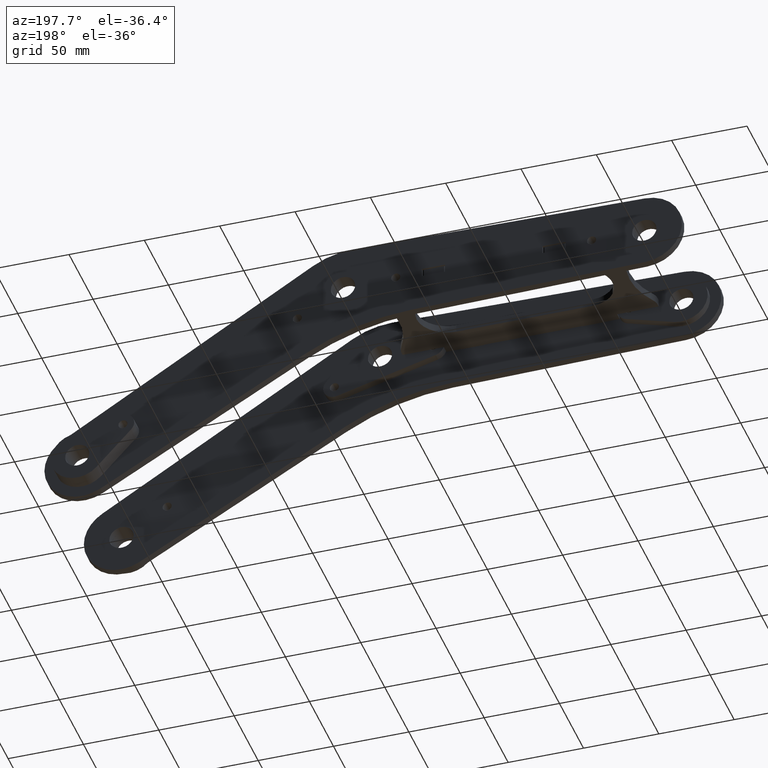
[diagram: clean part render]
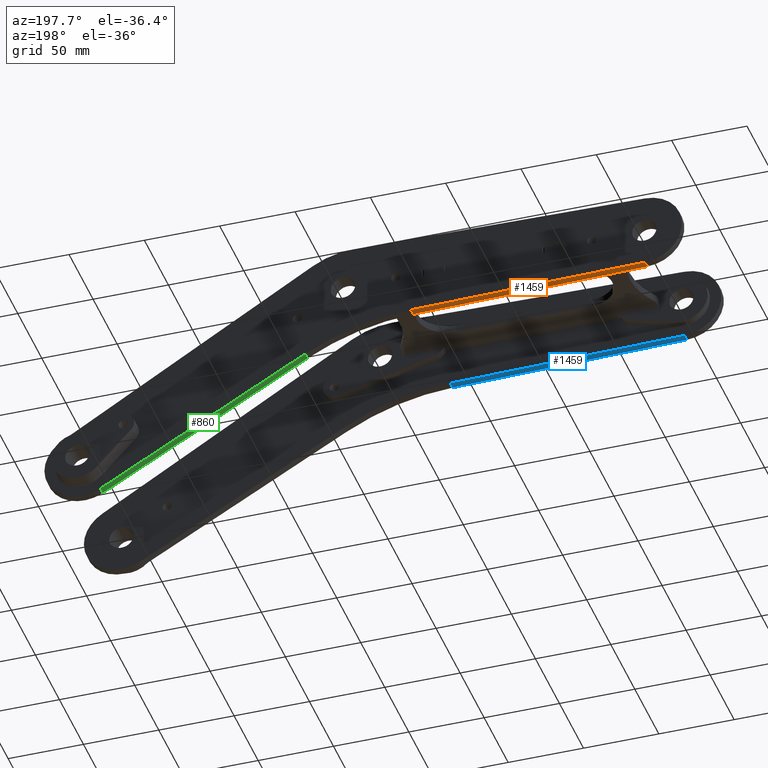
[diagram: same view with three faces highlighted in distinct colors, each labeled with its STEP entity id]
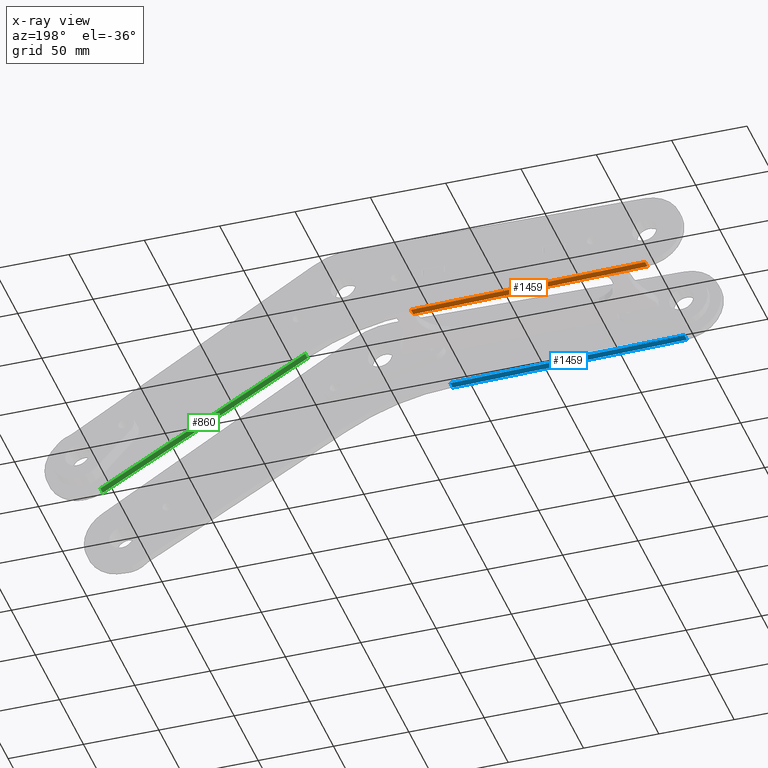
[diagram: x-ray of the same camera — body ghosted, the three highlighted faces saturated]
A machine part, auxiliary view with three faces highlighted in distinct colors.
The next image is the same camera in x-ray (body ghosted, the three faces saturated) — at least one of them is partly hidden behind the body in this view.
Their STEP definitions:

[orange] entity #1459 — the highlighted planar face has unit normal (-0.0175, -0, -0.9998).
#211 = VERTEX_POINT ( 'NONE', #2840 ) ;
#598 = FACE_OUTER_BOUND ( 'NONE', #752, .T. ) ;
#670 = CARTESIAN_POINT ( 'NONE',  ( -200.4363101609320950, -24.99619237890977530, -5.000000000000000000 ) ) ;
#701 = EDGE_CURVE ( 'NONE', #1866, #1009, #1950, .T. ) ;
#752 = EDGE_LOOP ( 'NONE', ( #1879, #4184, #825, #4088 ) ) ;
#825 = ORIENTED_EDGE ( 'NONE', *, *, #4283, .T. ) ;
#865 = CARTESIAN_POINT ( 'NONE',  ( -200.4363101609320950, -24.99619237890977530, -5.000000000000000000 ) ) ;
#962 = CARTESIAN_POINT ( 'NONE',  ( -200.4363101609320950, -24.99619237890977530, 0.000000000000000000 ) ) ;
#965 = LINE ( 'NONE', #3302, #3862 ) ;
#1009 = VERTEX_POINT ( 'NONE', #962 ) ;
#1023 = LINE ( 'NONE', #3719, #2730 ) ;
#1263 = DIRECTION ( 'NONE',  ( -0.01745240643728373370, -0.9998476951563912696, 0.000000000000000000 ) ) ;
#1391 = LINE ( 'NONE', #670, #2059 ) ;
#1394 = CARTESIAN_POINT ( 'NONE',  ( -200.4363101609320950, -24.99619237890977530, -5.000000000000000000 ) ) ;
#1459 = ADVANCED_FACE ( 'NONE', ( #598 ), #4320, .T. ) ;
#1626 = VERTEX_POINT ( 'NONE', #3401 ) ;
#1634 = DIRECTION ( 'NONE',  ( 0.9998476951563911586, -0.01745240643728373023, 0.000000000000000000 ) ) ;
#1866 = VERTEX_POINT ( 'NONE', #1394 ) ;
#1879 = ORIENTED_EDGE ( 'NONE', *, *, #3367, .F. ) ;
#1950 = LINE ( 'NONE', #2420, #4351 ) ;
#2059 = VECTOR ( 'NONE', #3717, 1000.000000000000114 ) ;
#2398 = EDGE_CURVE ( 'NONE', #1626, #211, #1023, .T. ) ;
#2420 = CARTESIAN_POINT ( 'NONE',  ( -200.4363101609320950, -24.99619237890977530, -5.000000000000000000 ) ) ;
#2505 = AXIS2_PLACEMENT_3D ( 'NONE', #865, #1263, #2978 ) ;
#2730 = VECTOR ( 'NONE', #4026, 1000.000000000000000 ) ;
#2840 = CARTESIAN_POINT ( 'NONE',  ( -44.99312471194955521, -27.70946327357076555, 0.000000000000000000 ) ) ;
#2978 = DIRECTION ( 'NONE',  ( 0.9998476951563911586, -0.01745240643728373023, 0.000000000000000000 ) ) ;
#3302 = CARTESIAN_POINT ( 'NONE',  ( -200.4363101609320950, -24.99619237890977530, 0.000000000000000000 ) ) ;
#3367 = EDGE_CURVE ( 'NONE', #1009, #211, #965, .T. ) ;
#3401 = CARTESIAN_POINT ( 'NONE',  ( -44.99312471194955521, -27.70946327357076555, -5.000000000000000000 ) ) ;
#3439 = DIRECTION ( 'NONE',  ( 0.000000000000000000, 0.000000000000000000, 1.000000000000000000 ) ) ;
#3717 = DIRECTION ( 'NONE',  ( 0.9998476951563911586, -0.01745240643728373023, 0.000000000000000000 ) ) ;
#3719 = CARTESIAN_POINT ( 'NONE',  ( -44.99312471194955521, -27.70946327357076555, -5.000000000000000000 ) ) ;
#3862 = VECTOR ( 'NONE', #1634, 1000.000000000000114 ) ;
#4026 = DIRECTION ( 'NONE',  ( 0.000000000000000000, 0.000000000000000000, 1.000000000000000000 ) ) ;
#4088 = ORIENTED_EDGE ( 'NONE', *, *, #2398, .T. ) ;
#4184 = ORIENTED_EDGE ( 'NONE', *, *, #701, .F. ) ;
#4283 = EDGE_CURVE ( 'NONE', #1866, #1626, #1391, .T. ) ;
#4320 = PLANE ( 'NONE',  #2505 ) ;
#4351 = VECTOR ( 'NONE', #3439, 1000.000000000000000 ) ;

[blue] entity #1459 — the highlighted planar face has unit normal (-0.0175, 0, -0.9998).
#211 = VERTEX_POINT ( 'NONE', #2840 ) ;
#598 = FACE_OUTER_BOUND ( 'NONE', #752, .T. ) ;
#670 = CARTESIAN_POINT ( 'NONE',  ( -200.4363101609320950, -24.99619237890977530, -5.000000000000000000 ) ) ;
#701 = EDGE_CURVE ( 'NONE', #1866, #1009, #1950, .T. ) ;
#752 = EDGE_LOOP ( 'NONE', ( #1879, #4184, #825, #4088 ) ) ;
#825 = ORIENTED_EDGE ( 'NONE', *, *, #4283, .T. ) ;
#865 = CARTESIAN_POINT ( 'NONE',  ( -200.4363101609320950, -24.99619237890977530, -5.000000000000000000 ) ) ;
#962 = CARTESIAN_POINT ( 'NONE',  ( -200.4363101609320950, -24.99619237890977530, 0.000000000000000000 ) ) ;
#965 = LINE ( 'NONE', #3302, #3862 ) ;
#1009 = VERTEX_POINT ( 'NONE', #962 ) ;
#1023 = LINE ( 'NONE', #3719, #2730 ) ;
#1263 = DIRECTION ( 'NONE',  ( -0.01745240643728373370, -0.9998476951563912696, 0.000000000000000000 ) ) ;
#1391 = LINE ( 'NONE', #670, #2059 ) ;
#1394 = CARTESIAN_POINT ( 'NONE',  ( -200.4363101609320950, -24.99619237890977530, -5.000000000000000000 ) ) ;
#1459 = ADVANCED_FACE ( 'NONE', ( #598 ), #4320, .T. ) ;
#1626 = VERTEX_POINT ( 'NONE', #3401 ) ;
#1634 = DIRECTION ( 'NONE',  ( 0.9998476951563911586, -0.01745240643728373023, 0.000000000000000000 ) ) ;
#1866 = VERTEX_POINT ( 'NONE', #1394 ) ;
#1879 = ORIENTED_EDGE ( 'NONE', *, *, #3367, .F. ) ;
#1950 = LINE ( 'NONE', #2420, #4351 ) ;
#2059 = VECTOR ( 'NONE', #3717, 1000.000000000000114 ) ;
#2398 = EDGE_CURVE ( 'NONE', #1626, #211, #1023, .T. ) ;
#2420 = CARTESIAN_POINT ( 'NONE',  ( -200.4363101609320950, -24.99619237890977530, -5.000000000000000000 ) ) ;
#2505 = AXIS2_PLACEMENT_3D ( 'NONE', #865, #1263, #2978 ) ;
#2730 = VECTOR ( 'NONE', #4026, 1000.000000000000000 ) ;
#2840 = CARTESIAN_POINT ( 'NONE',  ( -44.99312471194955521, -27.70946327357076555, 0.000000000000000000 ) ) ;
#2978 = DIRECTION ( 'NONE',  ( 0.9998476951563911586, -0.01745240643728373023, 0.000000000000000000 ) ) ;
#3302 = CARTESIAN_POINT ( 'NONE',  ( -200.4363101609320950, -24.99619237890977530, 0.000000000000000000 ) ) ;
#3367 = EDGE_CURVE ( 'NONE', #1009, #211, #965, .T. ) ;
#3401 = CARTESIAN_POINT ( 'NONE',  ( -44.99312471194955521, -27.70946327357076555, -5.000000000000000000 ) ) ;
#3439 = DIRECTION ( 'NONE',  ( 0.000000000000000000, 0.000000000000000000, 1.000000000000000000 ) ) ;
#3717 = DIRECTION ( 'NONE',  ( 0.9998476951563911586, -0.01745240643728373023, 0.000000000000000000 ) ) ;
#3719 = CARTESIAN_POINT ( 'NONE',  ( -44.99312471194955521, -27.70946327357076555, -5.000000000000000000 ) ) ;
#3862 = VECTOR ( 'NONE', #1634, 1000.000000000000114 ) ;
#4026 = DIRECTION ( 'NONE',  ( 0.000000000000000000, 0.000000000000000000, 1.000000000000000000 ) ) ;
#4088 = ORIENTED_EDGE ( 'NONE', *, *, #2398, .T. ) ;
#4184 = ORIENTED_EDGE ( 'NONE', *, *, #701, .F. ) ;
#4283 = EDGE_CURVE ( 'NONE', #1866, #1626, #1391, .T. ) ;
#4320 = PLANE ( 'NONE',  #2505 ) ;
#4351 = VECTOR ( 'NONE', #3439, 1000.000000000000000 ) ;

[green] entity #860 — the highlighted planar face has unit normal (-0.4848, -0, -0.8746).
#9 = EDGE_CURVE ( 'NONE', #1072, #1962, #3420, .T. ) ;
#79 = PLANE ( 'NONE',  #1217 ) ;
#148 = CARTESIAN_POINT ( 'NONE',  ( 25.11045735940951218, -46.49366147612066413, -5.000000000000000000 ) ) ;
#162 = VECTOR ( 'NONE', #526, 1000.000000000000000 ) ;
#451 = CARTESIAN_POINT ( 'NONE',  ( 161.0848402507290302, -121.8654926784849835, -5.000000000000000000 ) ) ;
#526 = DIRECTION ( 'NONE',  ( 0.000000000000000000, 0.000000000000000000, 1.000000000000000000 ) ) ;
#831 = DIRECTION ( 'NONE',  ( -0.4848096202463438864, -0.8746197071393920774, 0.000000000000000000 ) ) ;
#860 = ADVANCED_FACE ( 'NONE', ( #1830 ), #79, .T. ) ;
#931 = LINE ( 'NONE', #1956, #1932 ) ;
#1072 = VERTEX_POINT ( 'NONE', #3962 ) ;
#1217 = AXIS2_PLACEMENT_3D ( 'NONE', #451, #831, #3501 ) ;
#1407 = DIRECTION ( 'NONE',  ( 0.8746197071393919664, -0.4848096202463438309, -0.000000000000000000 ) ) ;
#1474 = EDGE_CURVE ( 'NONE', #1962, #3462, #931, .T. ) ;
#1749 = ORIENTED_EDGE ( 'NONE', *, *, #1920, .F. ) ;
#1768 = VECTOR ( 'NONE', #2430, 1000.000000000000227 ) ;
#1830 = FACE_OUTER_BOUND ( 'NONE', #2680, .T. ) ;
#1847 = ORIENTED_EDGE ( 'NONE', *, *, #3785, .F. ) ;
#1909 = DIRECTION ( 'NONE',  ( 0.000000000000000000, 0.000000000000000000, 1.000000000000000000 ) ) ;
#1920 = EDGE_CURVE ( 'NONE', #1072, #2939, #4315, .T. ) ;
#1932 = VECTOR ( 'NONE', #1909, 1000.000000000000000 ) ;
#1956 = CARTESIAN_POINT ( 'NONE',  ( 161.0848402507290302, -121.8654926784849835, -5.000000000000000000 ) ) ;
#1962 = VERTEX_POINT ( 'NONE', #2555 ) ;
#2218 = CARTESIAN_POINT ( 'NONE',  ( 25.11045735940951218, -46.49366147612066413, 0.000000000000000000 ) ) ;
#2239 = VECTOR ( 'NONE', #1407, 1000.000000000000227 ) ;
#2430 = DIRECTION ( 'NONE',  ( 0.8746197071393919664, -0.4848096202463438309, -0.000000000000000000 ) ) ;
#2555 = CARTESIAN_POINT ( 'NONE',  ( 161.0848402507290302, -121.8654926784849835, -5.000000000000000000 ) ) ;
#2680 = EDGE_LOOP ( 'NONE', ( #1847, #1749, #3610, #3056 ) ) ;
#2715 = LINE ( 'NONE', #4074, #1768 ) ;
#2939 = VERTEX_POINT ( 'NONE', #2218 ) ;
#3056 = ORIENTED_EDGE ( 'NONE', *, *, #1474, .T. ) ;
#3420 = LINE ( 'NONE', #3758, #2239 ) ;
#3462 = VERTEX_POINT ( 'NONE', #3800 ) ;
#3501 = DIRECTION ( 'NONE',  ( 0.8746197071393919664, -0.4848096202463438309, 0.000000000000000000 ) ) ;
#3610 = ORIENTED_EDGE ( 'NONE', *, *, #9, .T. ) ;
#3758 = CARTESIAN_POINT ( 'NONE',  ( 161.0848402507290302, -121.8654926784849835, -5.000000000000000000 ) ) ;
#3785 = EDGE_CURVE ( 'NONE', #2939, #3462, #2715, .T. ) ;
#3800 = CARTESIAN_POINT ( 'NONE',  ( 161.0848402507290302, -121.8654926784849835, 0.000000000000000000 ) ) ;
#3962 = CARTESIAN_POINT ( 'NONE',  ( 25.11045735940951218, -46.49366147612066413, -5.000000000000000000 ) ) ;
#4074 = CARTESIAN_POINT ( 'NONE',  ( 161.0848402507290302, -121.8654926784849835, 0.000000000000000000 ) ) ;
#4315 = LINE ( 'NONE', #148, #162 ) ;